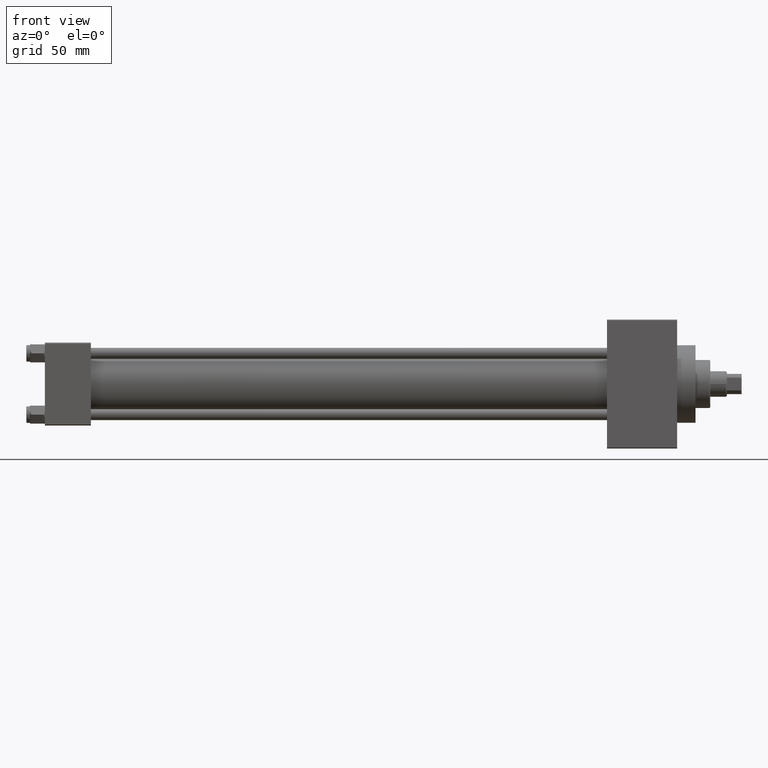
[diagram: clean part render]
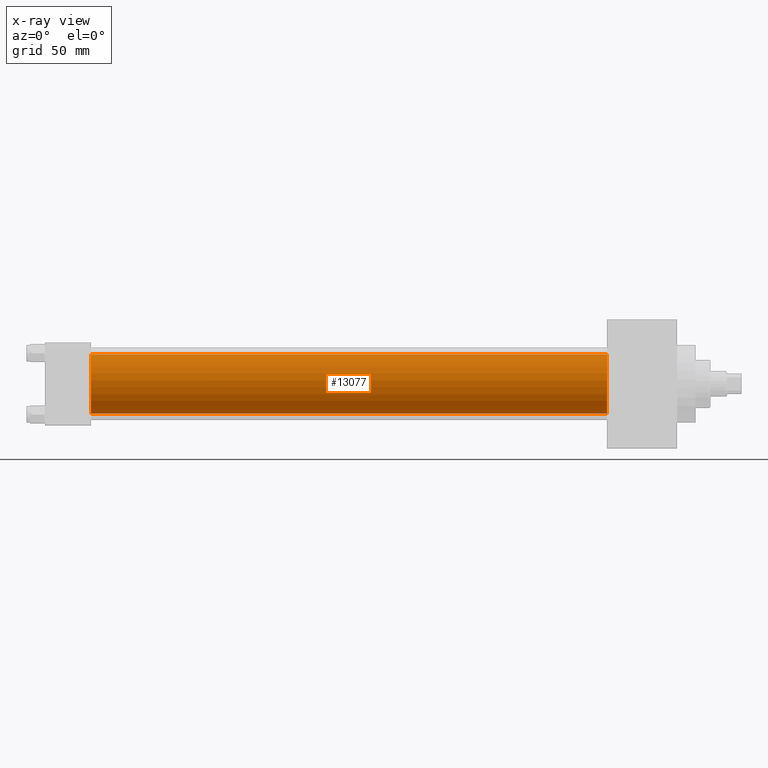
[diagram: x-ray — body ghosted, one internal face saturated and labeled with its STEP entity id]
A machine part, front view, then the same camera in x-ray: the body is ghosted and one INTERNAL B-rep face — a face not visible from any outside direction — is saturated and labeled: STEP entity #13077.
In plain terms, the highlighted cylindrical surface (edge-blend (fillet) strip) has radius 16 mm, axis along (-1, -0, -0).
Its self-contained STEP definition (entity closure, byte-faithful):
#240 = VERTEX_POINT ( 'NONE', #22577 ) ;
#577 = ORIENTED_EDGE ( 'NONE', *, *, #31078, .F. ) ;
#607 = CARTESIAN_POINT ( 'NONE',  ( 305.0000000000000568, -2.602085213965210642E-15, 0.000000000000000000 ) ) ;
#1591 = EDGE_CURVE ( 'NONE', #35131, #39609, #42948, .T. ) ;
#2028 = DIRECTION ( 'NONE',  ( -1.000000000000000000, -0.000000000000000000, -0.000000000000000000 ) ) ;
#4612 = DIRECTION ( 'NONE',  ( 0.000000000000000000, 0.000000000000000000, -1.000000000000000000 ) ) ;
#4984 = CARTESIAN_POINT ( 'NONE',  ( 305.0000000000000568, -2.602085213965210642E-15, 0.000000000000000000 ) ) ;
#12703 = CARTESIAN_POINT ( 'NONE',  ( 25.00000000000000000, -6.426503353294456087E-16, -16.00000000000000000 ) ) ;
#13077 = ADVANCED_FACE ( 'NONE', ( #41311 ), #43958, .F. ) ;
#19105 = CARTESIAN_POINT ( 'NONE',  ( 305.0000000000000568, -6.426503353294456087E-16, -16.00000000000000000 ) ) ;
#19530 = ORIENTED_EDGE ( 'NONE', *, *, #22314, .T. ) ;
#21351 = DIRECTION ( 'NONE',  ( -1.000000000000000000, -0.000000000000000000, -0.000000000000000000 ) ) ;
#21746 = AXIS2_PLACEMENT_3D ( 'NONE', #37437, #25954, #4612 ) ;
#22314 = EDGE_CURVE ( 'NONE', #39609, #40141, #38866, .T. ) ;
#22577 = CARTESIAN_POINT ( 'NONE',  ( 25.00000000000000000, -2.602085213965210642E-15, 16.00000000000000000 ) ) ;
#22771 = VECTOR ( 'NONE', #34790, 1000.000000000000000 ) ;
#23137 = VECTOR ( 'NONE', #21351, 1000.000000000000000 ) ;
#23756 = LINE ( 'NONE', #40369, #22771 ) ;
#25954 = DIRECTION ( 'NONE',  ( 1.000000000000000000, 0.000000000000000000, 0.000000000000000000 ) ) ;
#26658 = EDGE_CURVE ( 'NONE', #240, #40141, #42400, .T. ) ;
#31078 = EDGE_CURVE ( 'NONE', #35131, #240, #23756, .T. ) ;
#34790 = DIRECTION ( 'NONE',  ( -1.000000000000000000, -0.000000000000000000, -0.000000000000000000 ) ) ;
#35131 = VERTEX_POINT ( 'NONE', #38353 ) ;
#35666 = ORIENTED_EDGE ( 'NONE', *, *, #1591, .T. ) ;
#37437 = CARTESIAN_POINT ( 'NONE',  ( 25.00000000000000000, -2.602085213965210642E-15, 0.000000000000000000 ) ) ;
#38212 = DIRECTION ( 'NONE',  ( 0.000000000000000000, 0.000000000000000000, 1.000000000000000000 ) ) ;
#38353 = CARTESIAN_POINT ( 'NONE',  ( 305.0000000000000568, -2.602085213965210642E-15, 16.00000000000000000 ) ) ;
#38866 = LINE ( 'NONE', #39582, #23137 ) ;
#39582 = CARTESIAN_POINT ( 'NONE',  ( 305.0000000000000568, -6.426503353294456087E-16, -16.00000000000000000 ) ) ;
#39609 = VERTEX_POINT ( 'NONE', #19105 ) ;
#39829 = AXIS2_PLACEMENT_3D ( 'NONE', #607, #2028, #38212 ) ;
#40141 = VERTEX_POINT ( 'NONE', #12703 ) ;
#40369 = CARTESIAN_POINT ( 'NONE',  ( 305.0000000000000568, -2.602085213965210642E-15, 16.00000000000000000 ) ) ;
#41311 = FACE_OUTER_BOUND ( 'NONE', #47271, .T. ) ;
#42400 = CIRCLE ( 'NONE', #21746, 16.00000000000000000 ) ;
#42948 = CIRCLE ( 'NONE', #45972, 16.00000000000000000 ) ;
#43958 = CYLINDRICAL_SURFACE ( 'NONE', #39829, 16.00000000000000000 ) ;
#45207 = DIRECTION ( 'NONE',  ( 1.000000000000000000, 0.000000000000000000, 0.000000000000000000 ) ) ;
#45445 = DIRECTION ( 'NONE',  ( 0.000000000000000000, 0.000000000000000000, -1.000000000000000000 ) ) ;
#45972 = AXIS2_PLACEMENT_3D ( 'NONE', #4984, #45207, #45445 ) ;
#46176 = ORIENTED_EDGE ( 'NONE', *, *, #26658, .F. ) ;
#47271 = EDGE_LOOP ( 'NONE', ( #35666, #19530, #46176, #577 ) ) ;